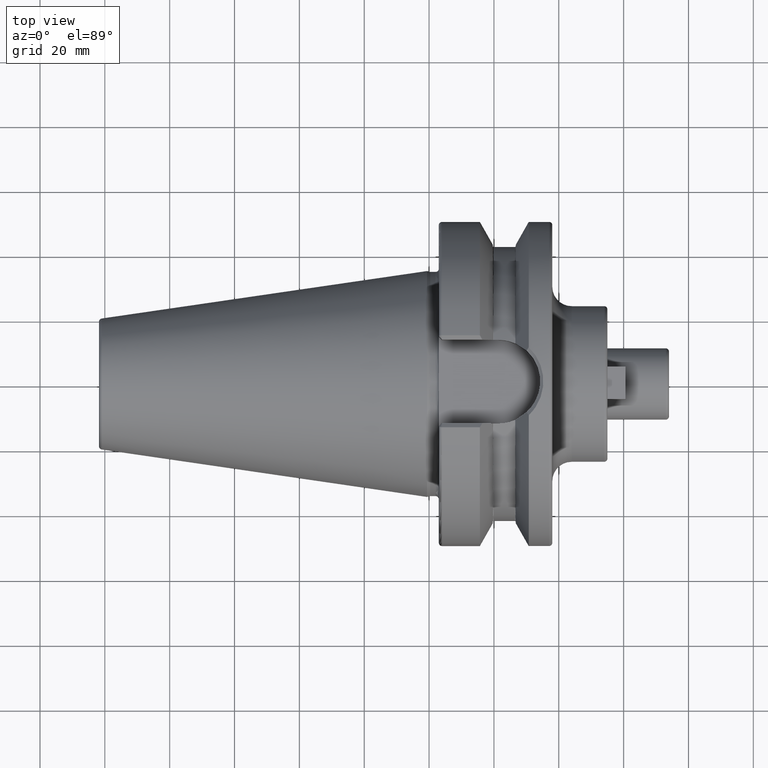
[diagram: clean part render]
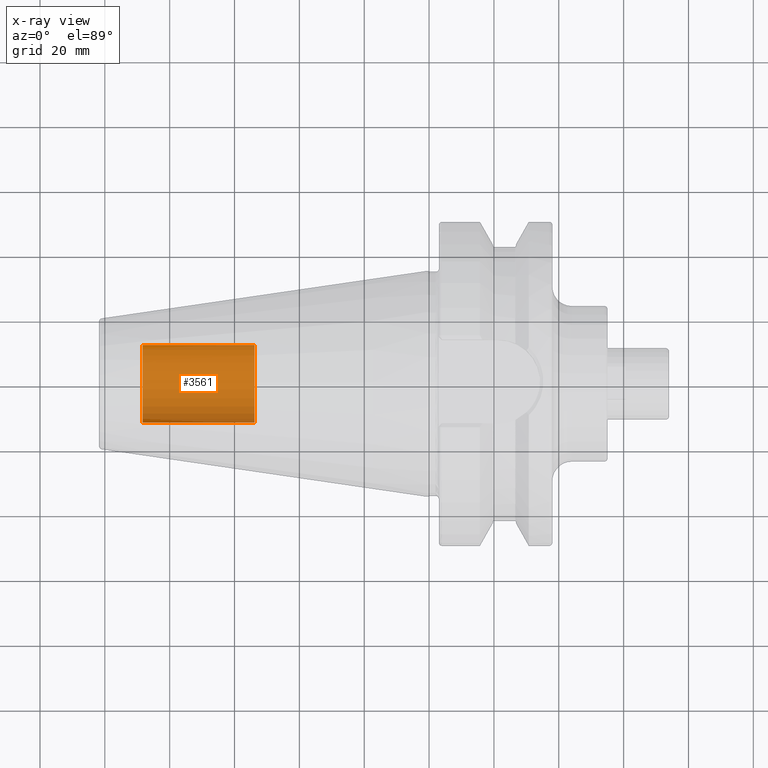
[diagram: x-ray — body ghosted, one internal face saturated and labeled with its STEP entity id]
A machine part, top view, then the same camera in x-ray: the body is ghosted and one INTERNAL B-rep face — a face not visible from any outside direction — is saturated and labeled: STEP entity #3561.
In plain terms, the highlighted cylindrical surface (partial cylindrical patch) has radius 12.0032 mm, axis along (1, 0, 0).
Its self-contained STEP definition (entity closure, byte-faithful):
#3496=CARTESIAN_POINT('',(-8.835E1,0.E0,0.E0));
#3497=DIRECTION('',(-1.E0,0.E0,0.E0));
#3498=DIRECTION('',(0.E0,1.E0,0.E0));
#3499=AXIS2_PLACEMENT_3D('',#3496,#3497,#3498);
#3501=DIRECTION('',(1.E0,0.E0,0.E0));
#3502=VECTOR('',#3501,3.455E1);
#3503=CARTESIAN_POINT('',(-8.835E1,-1.200325E1,0.E0));
#3504=LINE('',#3503,#3502);
#3510=DIRECTION('',(1.E0,0.E0,0.E0));
#3511=VECTOR('',#3510,3.455E1);
#3512=CARTESIAN_POINT('',(-8.835E1,1.200325E1,0.E0));
#3513=LINE('',#3512,#3511);
#3519=CARTESIAN_POINT('',(-5.38E1,0.E0,0.E0));
#3520=DIRECTION('',(1.E0,0.E0,0.E0));
#3521=DIRECTION('',(0.E0,-1.E0,0.E0));
#3522=AXIS2_PLACEMENT_3D('',#3519,#3520,#3521);
#3534=CARTESIAN_POINT('',(-8.835E1,1.200325E1,0.E0));
#3535=CARTESIAN_POINT('',(-8.835E1,-1.200325E1,0.E0));
#3536=VERTEX_POINT('',#3534);
#3537=VERTEX_POINT('',#3535);
#3538=CARTESIAN_POINT('',(-5.38E1,1.200325E1,0.E0));
#3539=CARTESIAN_POINT('',(-5.38E1,-1.200325E1,0.E0));
#3540=VERTEX_POINT('',#3538);
#3541=VERTEX_POINT('',#3539);
#3546=CARTESIAN_POINT('',(-8.835E1,0.E0,0.E0));
#3547=DIRECTION('',(1.E0,0.E0,0.E0));
#3548=DIRECTION('',(0.E0,1.E0,0.E0));
#3549=AXIS2_PLACEMENT_3D('',#3546,#3547,#3548);
#3550=CYLINDRICAL_SURFACE('',#3549,1.200325E1);
#3552=ORIENTED_EDGE('',*,*,#3551,.T.);
#3554=ORIENTED_EDGE('',*,*,#3553,.T.);
#3556=ORIENTED_EDGE('',*,*,#3555,.T.);
#3558=ORIENTED_EDGE('',*,*,#3557,.F.);
#3559=EDGE_LOOP('',(#3552,#3554,#3556,#3558));
#3560=FACE_OUTER_BOUND('',#3559,.F.);
#3561=ADVANCED_FACE('',(#3560),#3550,.T.);
#3500=CIRCLE('',#3499,1.200325E1);
#3523=CIRCLE('',#3522,1.200325E1);
#3551=EDGE_CURVE('',#3536,#3537,#3500,.T.);
#3553=EDGE_CURVE('',#3537,#3541,#3504,.T.);
#3555=EDGE_CURVE('',#3541,#3540,#3523,.T.);
#3557=EDGE_CURVE('',#3536,#3540,#3513,.T.);